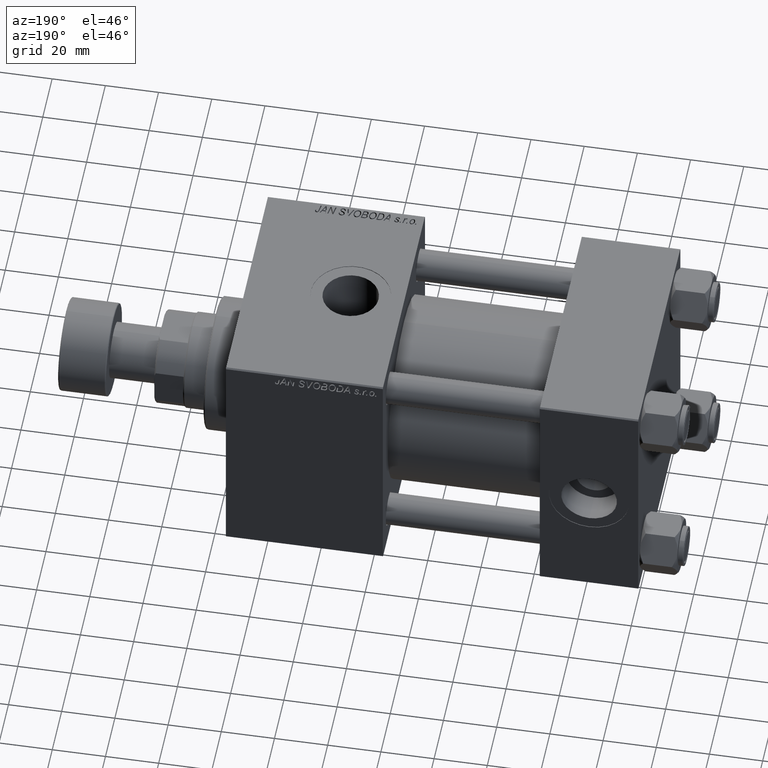
[diagram: clean part render]
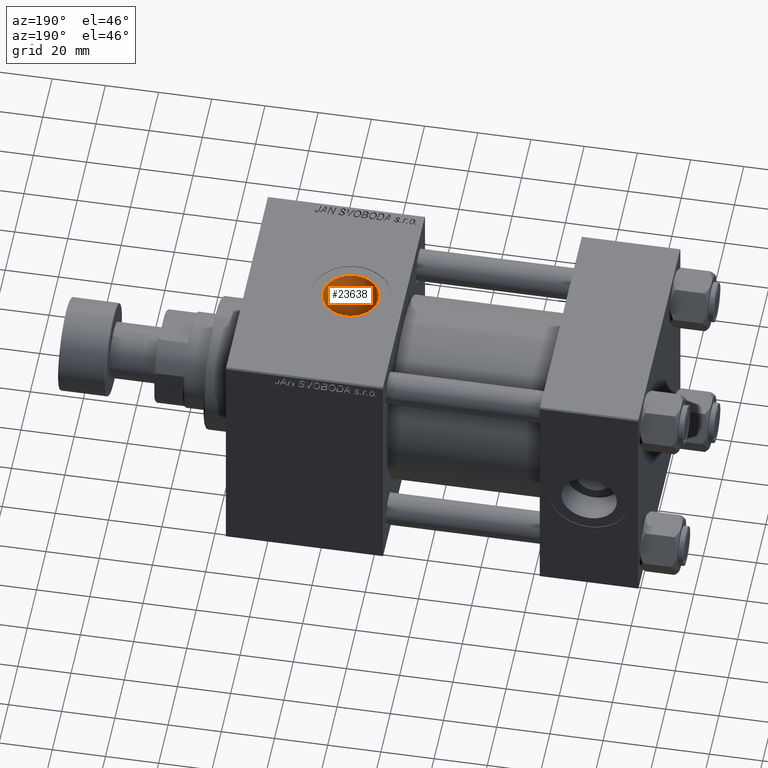
[diagram: same view with one face highlighted and labeled with its STEP entity id]
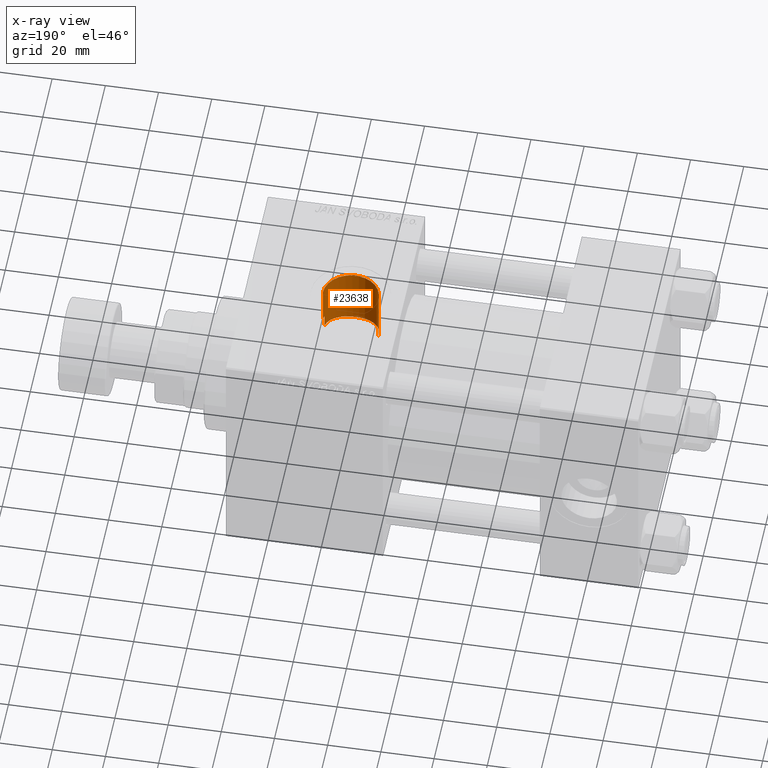
[diagram: x-ray of the same camera — body ghosted, the highlighted face saturated]
A machine part, auxiliary view. The second image highlights one B-rep face of the part: STEP entity #23638.
The next image is the same camera in x-ray: the body ghosted, the highlighted face saturated — about 1% of this face is hidden behind the body in this view.
In plain terms, the highlighted cylindrical surface (edge-blend (fillet) strip) has radius 10.48 mm, axis along (0, 0, -1).
Its self-contained STEP definition (entity closure, byte-faithful):
#63 = CARTESIAN_POINT ( 'NONE',  ( 105.5199999999999960, 3.061768933645607322E-15, 25.00000000000000000 ) ) ;
#321 = CARTESIAN_POINT ( 'NONE',  ( 112.4839847618188031, -9.894292633687737037, 22.95956932049218224 ) ) ;
#833 = CARTESIAN_POINT ( 'NONE',  ( 120.1231419626886918, -9.640330340006606491, 23.06687293500593583 ) ) ;
#2413 = CARTESIAN_POINT ( 'NONE',  ( 120.4196187691514268, -9.507918361243600458, 23.12193083781265912 ) ) ;
#3260 = DIRECTION ( 'NONE',  ( 0.000000000000000000, 0.000000000000000000, -1.000000000000000000 ) ) ;
#3397 = CARTESIAN_POINT ( 'NONE',  ( 125.0706658558967064, -5.259006608444891206, 24.44220782432770989 ) ) ;
#3656 = CARTESIAN_POINT ( 'NONE',  ( 115.3546047890858688, -10.46516069043768127, 22.70421781554146534 ) ) ;
#3873 = VERTEX_POINT ( 'NONE', #40575 ) ;
#3909 = CARTESIAN_POINT ( 'NONE',  ( 111.0221739552387561, -9.227930489537738978, 23.23508811885840686 ) ) ;
#4171 = CARTESIAN_POINT ( 'NONE',  ( 109.9278629608511153, -8.547622686286425520, 23.49425722221100088 ) ) ;
#4413 = DIRECTION ( 'NONE',  ( -0.000000000000000000, -0.000000000000000000, -1.000000000000000000 ) ) ;
#4682 = CARTESIAN_POINT ( 'NONE',  ( 107.2700483939780582, -5.806941605985024957, 24.31783162990696923 ) ) ;
#5074 = B_SPLINE_CURVE_WITH_KNOTS ( 'NONE', 3,
 ( #38247, #18793, #34413, #30825, #14956, #50040, #3397, #34661, #10110, #25725, #41347, #6277, #37497, #2413, #833, #12377, #31078, #42590, #8288, #31326, #15457, #46677, #3656, #23897, #35417, #321, #15972, #3909, #11607, #39514, #4171, #24160, #19542, #16486, #35168, #47203, #4682, #23119, #7778, #31591, #16225, #27983, #27213, #26957, #46945, #63 ),
 .UNSPECIFIED., .F., .F.,
 ( 4, 2, 2, 2, 2, 2, 2, 2, 2, 2, 2, 2, 2, 2, 2, 2, 2, 2, 2, 2, 2, 2, 4 ),
 ( 0.000000000000000000, 0.001950635593260295966, 0.002925953389890427470, 0.003901271186520558973, 0.005851906779780863613, 0.007802542373041168253, 0.009753177966301472893, 0.01072849576293164429, 0.01170381355956181743, 0.01365444915282212034, 0.01462976694945227092, 0.01560508474608242324, 0.01755572033934268278, 0.01950635593260294579, 0.02048167372923307555, 0.02145699152586320532, 0.02340762711912346486, 0.02438294491575359116, 0.02535826271238371746, 0.02730889830564399434, 0.02828421610227412411, 0.02925953389890425388, 0.03121016949216451342 ),
 .UNSPECIFIED. ) ;
#5106 = CARTESIAN_POINT ( 'NONE',  ( 126.2999999999999972, -1.934011375354403928, 24.92507973909010133 ) ) ;
#5376 = EDGE_CURVE ( 'NONE', #5651, #37823, #5879, .T. ) ;
#5651 = VERTEX_POINT ( 'NONE', #10417 ) ;
#5879 = LINE ( 'NONE', #36862, #37045 ) ;
#6277 = CARTESIAN_POINT ( 'NONE',  ( 121.8209243987476356, -8.738118835249188976, 23.42674969495903881 ) ) ;
#6737 = CARTESIAN_POINT ( 'NONE',  ( 126.4800000000000040, 3.352779466116923030E-15, 30.00000000000000000 ) ) ;
#7292 = LINE ( 'NONE', #22895, #44109 ) ;
#7697 = EDGE_CURVE ( 'NONE', #25005, #37823, #5074, .T. ) ;
#7778 = CARTESIAN_POINT ( 'NONE',  ( 106.4757274622522800, -4.420234614575347720, 24.61370289774655973 ) ) ;
#8288 = CARTESIAN_POINT ( 'NONE',  ( 117.6440388710335299, -10.37086982902511778, 22.74752090709942465 ) ) ;
#10110 = CARTESIAN_POINT ( 'NONE',  ( 124.1756005286475499, -6.587575128527903168, 24.12146345890799637 ) ) ;
#10417 = CARTESIAN_POINT ( 'NONE',  ( 105.5199999999999960, -6.938893903907229955E-15, 44.80000000000000426 ) ) ;
#10866 = ORIENTED_EDGE ( 'NONE', *, *, #18952, .T. ) ;
#11607 = CARTESIAN_POINT ( 'NONE',  ( 110.7417737867749281, -9.071127878233122388, 23.29694815791200568 ) ) ;
#12377 = CARTESIAN_POINT ( 'NONE',  ( 119.5171666001240283, -9.877540575260040256, 22.96629679004111324 ) ) ;
#14956 = CARTESIAN_POINT ( 'NONE',  ( 125.5181834494522803, -4.397578030052900822, 24.61194086392342939 ) ) ;
#15457 = CARTESIAN_POINT ( 'NONE',  ( 116.3365788557130855, -10.47972957537892036, 22.69747272524820758 ) ) ;
#15972 = CARTESIAN_POINT ( 'NONE',  ( 111.8833764951161385, -9.658986692485468595, 23.06079053540467783 ) ) ;
#16225 = CARTESIAN_POINT ( 'NONE',  ( 106.0163520438033373, -3.203659694230076127, 24.79588824877905751 ) ) ;
#16486 = CARTESIAN_POINT ( 'NONE',  ( 108.0468296896718954, -6.832241012558617044, 24.04955172625635029 ) ) ;
#16542 = EDGE_CURVE ( 'NONE', #47037, #34366, #27586, .T. ) ;
#18793 = CARTESIAN_POINT ( 'NONE',  ( 126.1785100649303644, -2.581032560009073773, 24.87487543305312343 ) ) ;
#18952 = EDGE_CURVE ( 'NONE', #34366, #3873, #26012, .T. ) ;
#19029 = ORIENTED_EDGE ( 'NONE', *, *, #5376, .F. ) ;
#19476 = ORIENTED_EDGE ( 'NONE', *, *, #16542, .T. ) ;
#19542 = CARTESIAN_POINT ( 'NONE',  ( 108.6931338099205675, -7.539777678112572268, 23.84100615567446368 ) ) ;
#21858 = CARTESIAN_POINT ( 'NONE',  ( 116.0000000000000000, -6.938893903907229955E-15, 67.79999999999999716 ) ) ;
#22119 = CARTESIAN_POINT ( 'NONE',  ( 126.4800000000000040, 3.352779466116923030E-15, 30.00000000000000000 ) ) ;
#22895 = CARTESIAN_POINT ( 'NONE',  ( 126.2999999999999972, -1.934011375354403928, 67.79999999999999716 ) ) ;
#23119 = CARTESIAN_POINT ( 'NONE',  ( 106.7634153578573404, -4.992475095957402687, 24.50275936296847945 ) ) ;
#23638 = ADVANCED_FACE ( 'NONE', ( #30286 ), #30035, .F. ) ;
#23897 = CARTESIAN_POINT ( 'NONE',  ( 114.3833313512579366, -10.37495424086226059, 22.74565242126385556 ) ) ;
#24160 = CARTESIAN_POINT ( 'NONE',  ( 109.1629303359419225, -7.968317617044775147, 23.69965861349108494 ) ) ;
#25005 = VERTEX_POINT ( 'NONE', #5106 ) ;
#25725 = CARTESIAN_POINT ( 'NONE',  ( 123.3170701525835966, -7.529745975807653480, 23.84416219986019314 ) ) ;
#26012 = B_SPLINE_CURVE_WITH_KNOTS ( 'NONE', 3,
 ( #22119, #39891, #29118, #44737 ),
 .UNSPECIFIED., .F., .F.,
 ( 4, 4 ),
 ( 0.001934011375354386698, 0.003868022750708794213 ),
 .UNSPECIFIED. ) ;
#26957 = CARTESIAN_POINT ( 'NONE',  ( 105.5814376118526781, -1.305463397218002530, 24.97406791321481734 ) ) ;
#27213 = CARTESIAN_POINT ( 'NONE',  ( 105.7616823727591822, -2.261044314697987279, 24.89959345673755564 ) ) ;
#27586 = LINE ( 'NONE', #47063, #29580 ) ;
#27811 = CARTESIAN_POINT ( 'NONE',  ( 126.4800000000000040, -5.655464058400803678E-15, 44.80000000000000426 ) ) ;
#27983 = CARTESIAN_POINT ( 'NONE',  ( 105.8365460779989888, -2.576987839526249324, 24.86882874518435926 ) ) ;
#29118 = CARTESIAN_POINT ( 'NONE',  ( 126.4210485436893237, -1.289340916902936396, 29.97924172559974210 ) ) ;
#29580 = VECTOR ( 'NONE', #3260, 1000.000000000000000 ) ;
#30035 = CYLINDRICAL_SURFACE ( 'NONE', #31368, 10.48000000000000398 ) ;
#30286 = FACE_OUTER_BOUND ( 'NONE', #47879, .T. ) ;
#30808 = CARTESIAN_POINT ( 'NONE',  ( 116.0000000000000000, -6.938893903907229955E-15, 44.80000000000000426 ) ) ;
#30825 = CARTESIAN_POINT ( 'NONE',  ( 125.6486676934356410, -4.103318642504094171, 24.66282370660225354 ) ) ;
#31078 = CARTESIAN_POINT ( 'NONE',  ( 119.2104795289410077, -9.981359381819748577, 22.92121289265048034 ) ) ;
#31326 = CARTESIAN_POINT ( 'NONE',  ( 116.6678097429676200, -10.46380816682964721, 22.70484267188756533 ) ) ;
#31368 = AXIS2_PLACEMENT_3D ( 'NONE', #21858, #37468, #45645 ) ;
#31591 = CARTESIAN_POINT ( 'NONE',  ( 106.1217545085731047, -3.515057092907704739, 24.75353681254874871 ) ) ;
#34366 = VERTEX_POINT ( 'NONE', #6737 ) ;
#34413 = CARTESIAN_POINT ( 'NONE',  ( 125.9991245639265571, -3.203491301090201748, 24.80133124941671596 ) ) ;
#34661 = CARTESIAN_POINT ( 'NONE',  ( 124.5605886890353844, -6.079608507556195640, 24.25599010009743139 ) ) ;
#35168 = CARTESIAN_POINT ( 'NONE',  ( 107.8404148361185548, -6.584472189995018709, 24.11877139329476449 ) ) ;
#35417 = CARTESIAN_POINT ( 'NONE',  ( 113.7432686579793000, -10.25507452562443156, 22.80070824727648926 ) ) ;
#36862 = CARTESIAN_POINT ( 'NONE',  ( 105.5199999999999960, -6.938893903907229955E-15, 67.79999999999999716 ) ) ;
#37045 = VECTOR ( 'NONE', #48650, 1000.000000000000000 ) ;
#37468 = DIRECTION ( 'NONE',  ( 0.000000000000000000, 0.000000000000000000, -1.000000000000000000 ) ) ;
#37497 = CARTESIAN_POINT ( 'NONE',  ( 121.2804615657551466, -9.075224083592484448, 23.29671858359550640 ) ) ;
#37823 = VERTEX_POINT ( 'NONE', #48767 ) ;
#38247 = CARTESIAN_POINT ( 'NONE',  ( 126.2999999999999972, -1.934011375354403928, 24.92507973909010133 ) ) ;
#38526 = DIRECTION ( 'NONE',  ( -0.000000000000000000, -0.000000000000000000, 1.000000000000000000 ) ) ;
#38727 = EDGE_CURVE ( 'NONE', #47037, #5651, #40655, .T. ) ;
#39514 = CARTESIAN_POINT ( 'NONE',  ( 110.1942257187214693, -8.730824066922336257, 23.42660593359924093 ) ) ;
#39891 = CARTESIAN_POINT ( 'NONE',  ( 126.4800000000000040, -0.6446704584514658665, 30.00000000000000000 ) ) ;
#40575 = CARTESIAN_POINT ( 'NONE',  ( 126.2999999999999972, -1.934011375354403928, 29.93759509379468753 ) ) ;
#40636 = ORIENTED_EDGE ( 'NONE', *, *, #7697, .T. ) ;
#40655 = CIRCLE ( 'NONE', #41434, 10.48000000000000398 ) ;
#41347 = CARTESIAN_POINT ( 'NONE',  ( 122.8384446673738069, -7.967029318769887958, 23.70007944887655782 ) ) ;
#41434 = AXIS2_PLACEMENT_3D ( 'NONE', #30808, #4413, #44105 ) ;
#42590 = CARTESIAN_POINT ( 'NONE',  ( 118.2793881261891329, -10.24949000825645307, 22.80320365404041993 ) ) ;
#43523 = EDGE_CURVE ( 'NONE', #25005, #3873, #7292, .T. ) ;
#44105 = DIRECTION ( 'NONE',  ( 1.000000000000000000, 0.000000000000000000, 0.000000000000000000 ) ) ;
#44109 = VECTOR ( 'NONE', #38526, 1000.000000000000000 ) ;
#44737 = CARTESIAN_POINT ( 'NONE',  ( 126.2999999999999972, -1.934011375354403928, 29.93759509379468753 ) ) ;
#45645 = DIRECTION ( 'NONE',  ( -1.000000000000000000, 0.000000000000000000, 0.000000000000000000 ) ) ;
#46677 = CARTESIAN_POINT ( 'NONE',  ( 115.6804775589004919, -10.48026348470392755, 22.69722620448673922 ) ) ;
#46945 = CARTESIAN_POINT ( 'NONE',  ( 105.5199999999999818, -0.6581386959017271332, 25.00000000000000000 ) ) ;
#47037 = VERTEX_POINT ( 'NONE', #27811 ) ;
#47063 = CARTESIAN_POINT ( 'NONE',  ( 126.4800000000000040, -5.655464058400803678E-15, 67.79999999999999716 ) ) ;
#47203 = CARTESIAN_POINT ( 'NONE',  ( 107.4515334306830994, -6.071064435560087347, 24.25309432138730514 ) ) ;
#47415 = ORIENTED_EDGE ( 'NONE', *, *, #43523, .F. ) ;
#47879 = EDGE_LOOP ( 'NONE', ( #47977, #19476, #10866, #47415, #40636, #19029 ) ) ;
#47977 = ORIENTED_EDGE ( 'NONE', *, *, #38727, .F. ) ;
#48650 = DIRECTION ( 'NONE',  ( 0.000000000000000000, 0.000000000000000000, -1.000000000000000000 ) ) ;
#48767 = CARTESIAN_POINT ( 'NONE',  ( 105.5199999999999960, 3.061768933645607322E-15, 25.00000000000000000 ) ) ;
#50040 = CARTESIAN_POINT ( 'NONE',  ( 125.2296265764648240, -4.974786625258090567, 24.50179225389075199 ) ) ;